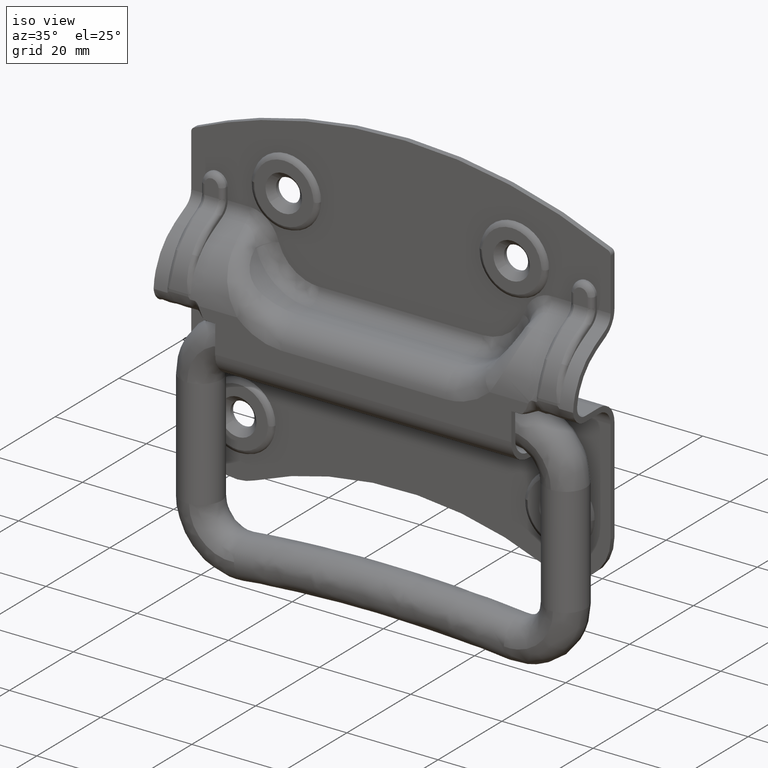
[diagram: clean part render]
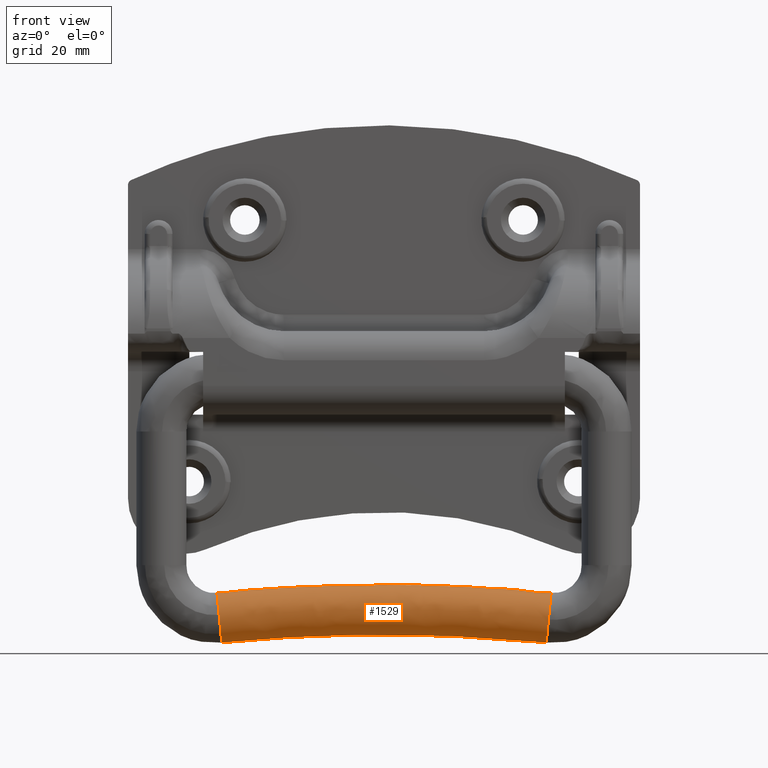
[diagram: tour spotlight — one face highlighted and labeled with its STEP entity id]
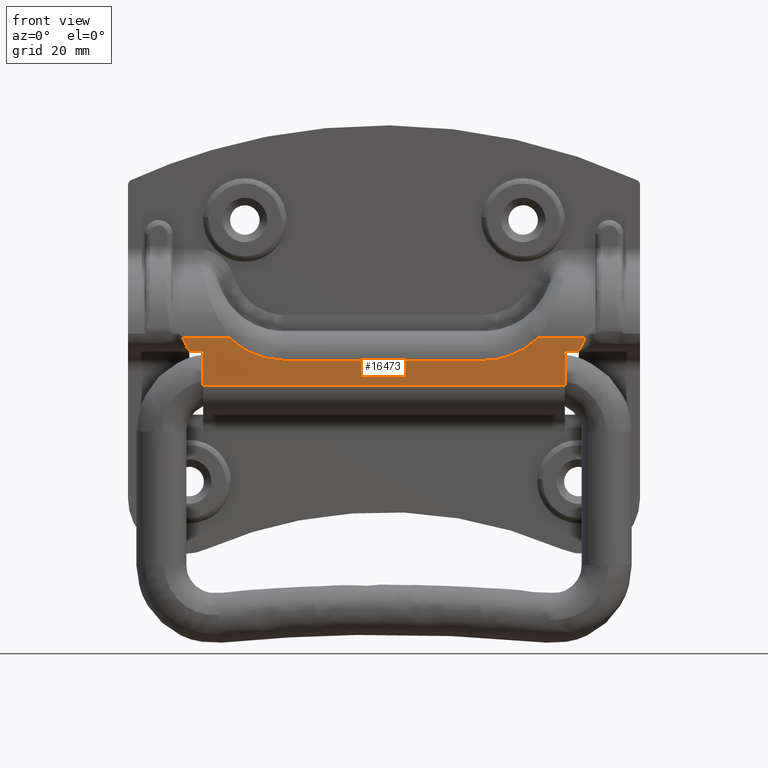
[diagram: tour spotlight — one face highlighted and labeled with its STEP entity id]
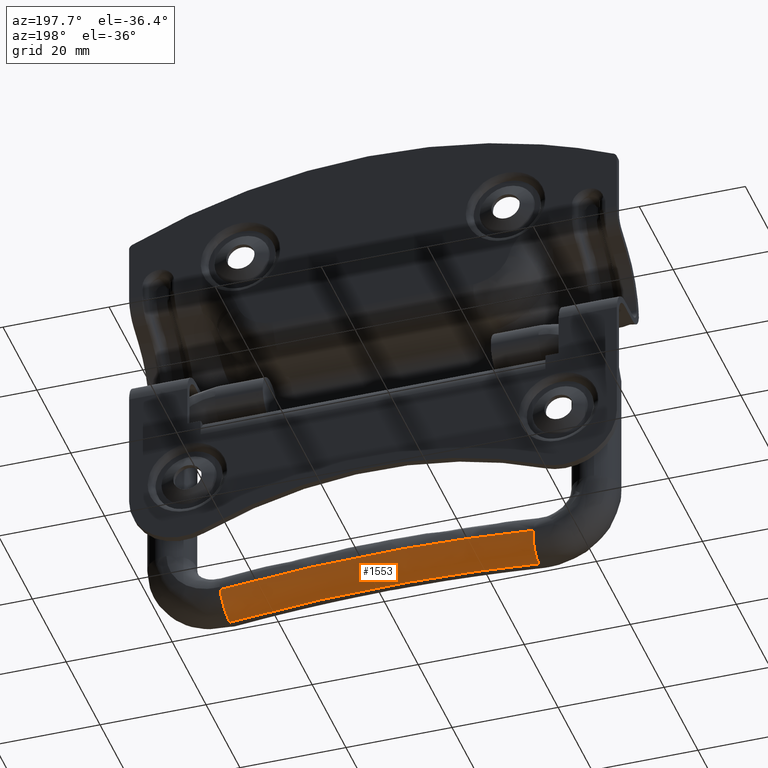
[diagram: tour spotlight — one face highlighted and labeled with its STEP entity id]
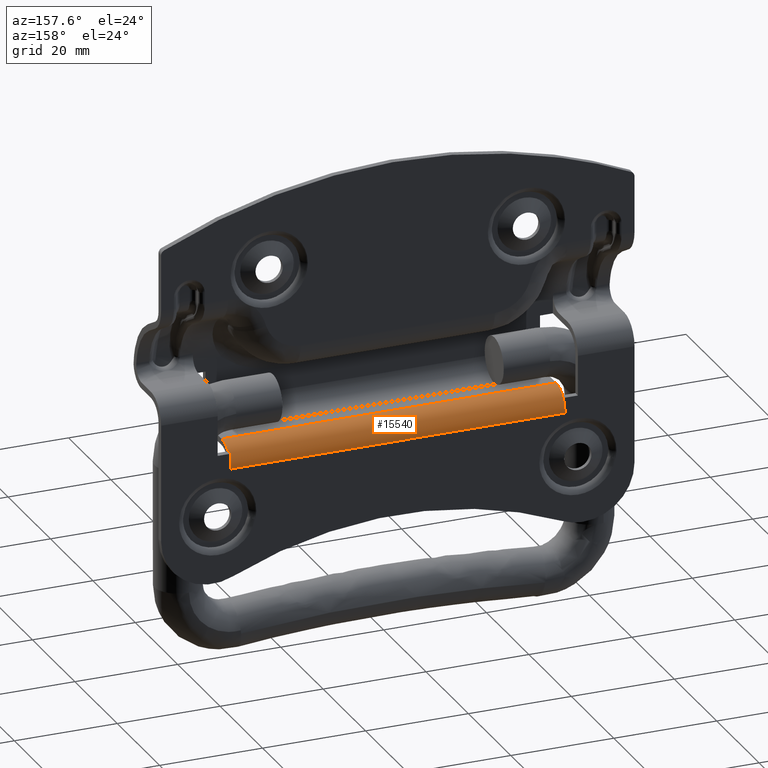
[diagram: tour spotlight — one face highlighted and labeled with its STEP entity id]
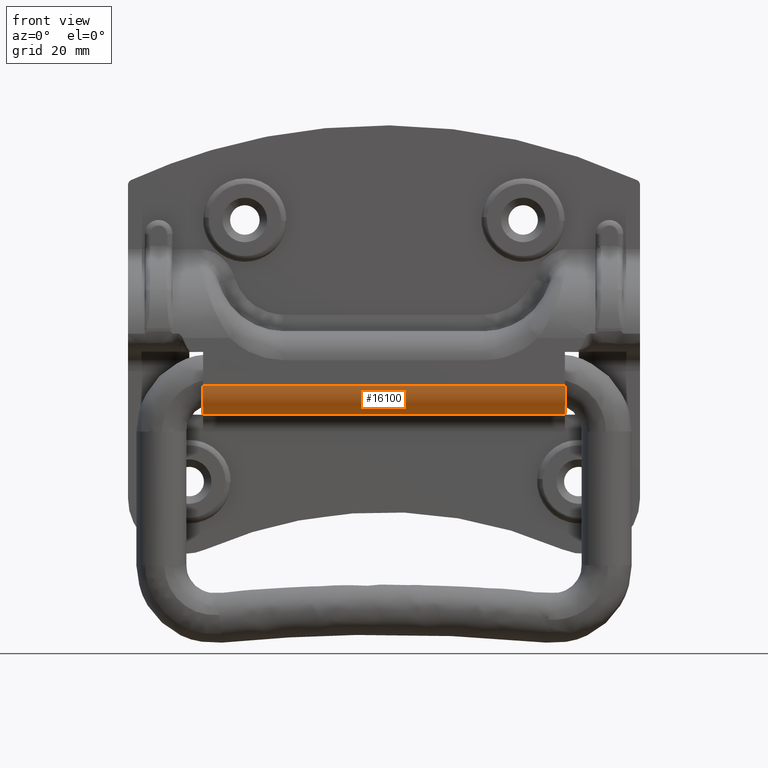
[diagram: tour spotlight — one face highlighted and labeled with its STEP entity id]
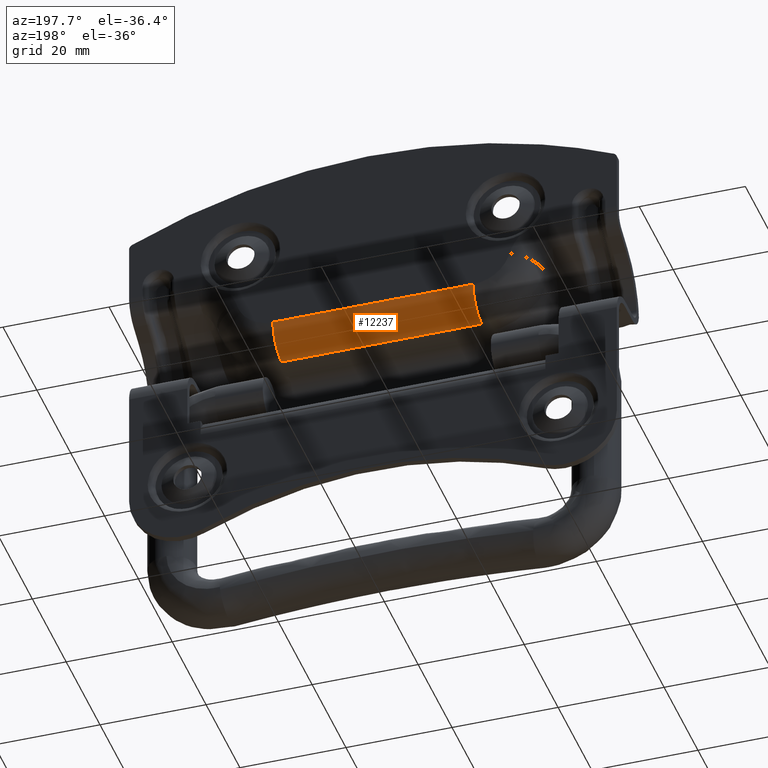
[diagram: tour spotlight — one face highlighted and labeled with its STEP entity id]
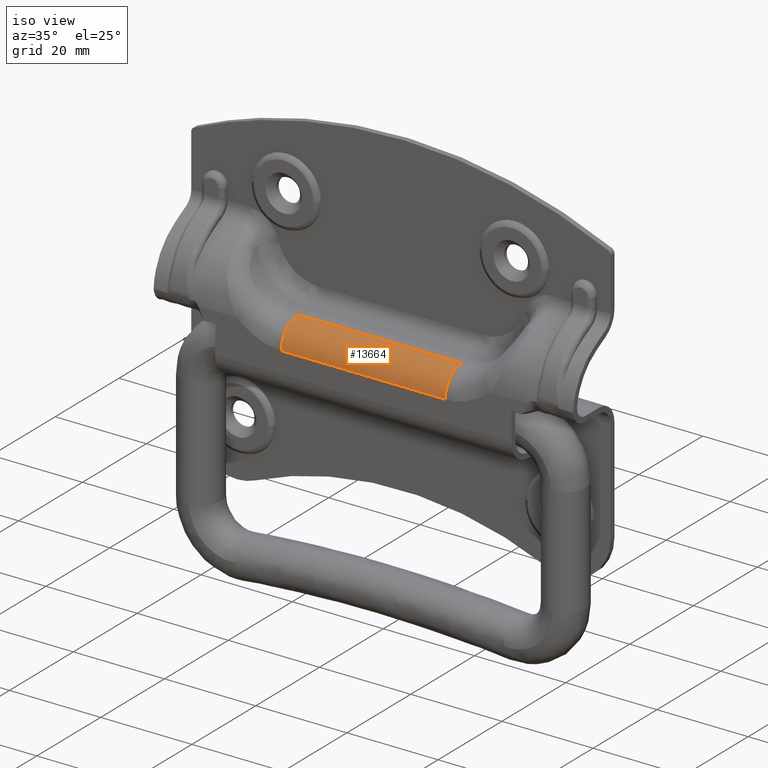
[diagram: tour spotlight — one face highlighted and labeled with its STEP entity id]
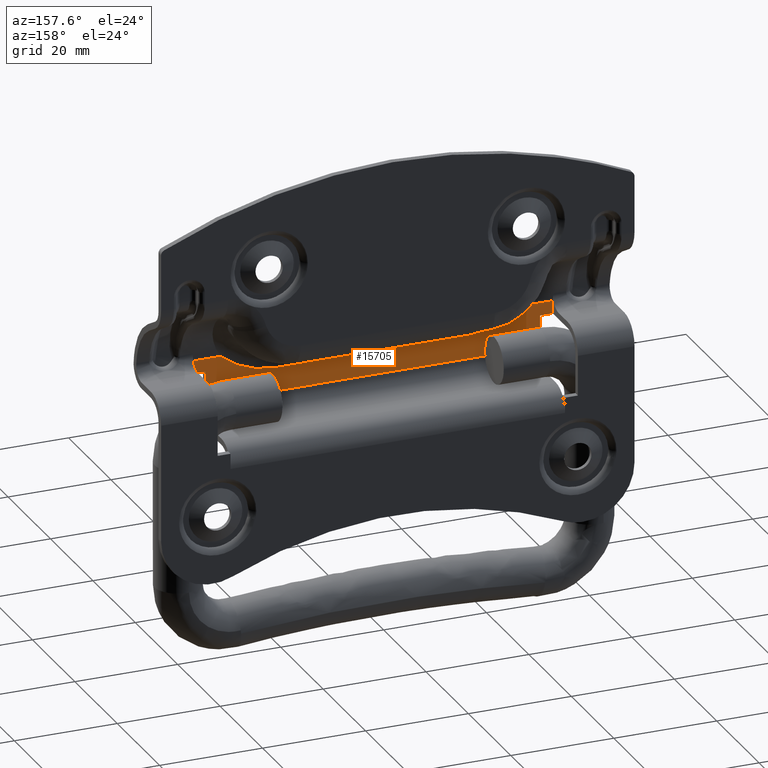
[diagram: tour spotlight — one face highlighted and labeled with its STEP entity id]
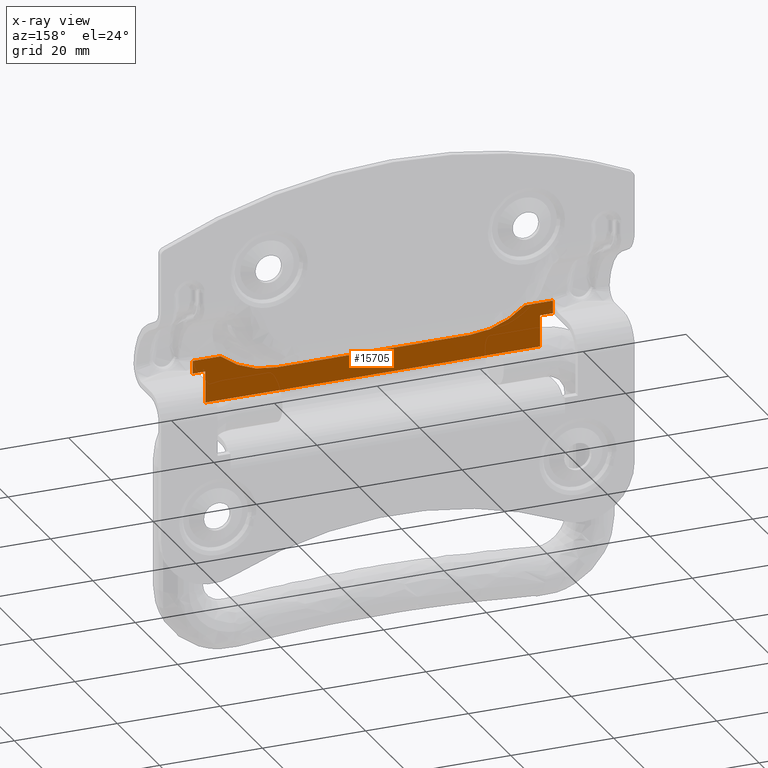
[diagram: x-ray of the same camera — body ghosted, this tour face saturated]
A machine part: a face-by-face anatomy tour. The part has 286 B-rep faces; the first image is the clean iso view, then the 8 largest visible faces are spotlighted one at a time (largest first), each with its STEP entity span.

Face 1 — front view, entity #1529. In plain terms, the highlighted face is a freeform B-spline surface patch.
Definition (entity closure, byte-faithful):
#1049=CARTESIAN_POINT('',(-29.626564545512281,-4.471250896667150,-42.449826334269943));
#1050=VERTEX_POINT('',#1049);
#1065=CARTESIAN_POINT('',(-30.014331210190779,-9.860761E-032,-38.476557051657991));
#1066=VERTEX_POINT('',#1065);
#1067=CARTESIAN_POINT('',(-29.626564545512281,-4.471250896667150,-42.449826334269943));
#1068=CARTESIAN_POINT('',(-29.652942188239582,-4.440431399439891,-42.179546607525509));
#1069=CARTESIAN_POINT('',(-29.708412415974959,-4.322104014127392,-41.611168368600843));
#1070=CARTESIAN_POINT('',(-29.803767739055079,-3.909914930158813,-40.634105647804553));
#1071=CARTESIAN_POINT('',(-29.896714754529260,-3.167656147096095,-39.681719731811782));
#1072=CARTESIAN_POINT('',(-29.962403456896698,-2.209847654670495,-39.008637350021061));
#1073=CARTESIAN_POINT('',(-30.003926233491988,-1.161501865438285,-38.583172225129282));
#1074=CARTESIAN_POINT('',(-30.014349703193030,-0.444162774393291,-38.476367601764359));
#1075=CARTESIAN_POINT('',(-30.014331210190779,-9.860761E-032,-38.476557051657991));
#1076=B_SPLINE_CURVE_WITH_KNOTS('',3,(#1067,#1068,#1069,#1070,#1071,#1072,#1073,#1074,#1075),.UNSPECIFIED.,.F.,.U.,(4,1,1,1,1,1,4),(0.000000087951475,0.819942952189238,1.742444323273630,3.177406440176298,4.407339460937630,5.227337968043115,6.559787215687426),.UNSPECIFIED.);
#1077=EDGE_CURVE('',#1050,#1066,#1076,.T.);
#1079=CARTESIAN_POINT('',(-29.546747967903318,4.489044960894897,-43.267601979746090));
#1080=VERTEX_POINT('',#1079);
#1081=CARTESIAN_POINT('',(-30.014331210190779,-9.860761E-032,-38.476557051657991));
#1082=CARTESIAN_POINT('',(-30.014366819848789,0.519130124083102,-38.476192180859023));
#1083=CARTESIAN_POINT('',(-29.998970974362649,1.422508669713792,-38.633944171868350));
#1084=CARTESIAN_POINT('',(-29.945652715462352,2.491644630984946,-39.180264379211643));
#1085=CARTESIAN_POINT('',(-29.882910565494971,3.260756824430233,-39.823145543882909));
#1086=CARTESIAN_POINT('',(-29.807650855351451,3.871097281730435,-40.594286636973123));
#1087=CARTESIAN_POINT('',(-29.695126986268409,4.411718473937000,-41.747251207785681));
#1088=CARTESIAN_POINT('',(-29.602640095102679,4.529798967486927,-42.694908888287110));
#1089=CARTESIAN_POINT('',(-29.546747967903318,4.489044960894897,-43.267601979746090));
#1090=B_SPLINE_CURVE_WITH_KNOTS('',3,(#1081,#1082,#1083,#1084,#1085,#1086,#1087,#1088,#1089),.UNSPECIFIED.,.F.,.U.,(4,1,1,1,1,1,4),(0.000000222270704,1.557279448077507,2.710850903610824,3.576014307369630,4.556499835220942,5.652378301975578,7.382696705283094),.UNSPECIFIED.);
#1091=EDGE_CURVE('',#1066,#1080,#1090,.T.);
#1093=CARTESIAN_POINT('',(-29.140174215467809,-0.056547551695510,-47.433646655502102));
#1094=VERTEX_POINT('',#1093);
#1107=CARTESIAN_POINT('',(-29.293837907298101,-3.425983479298738,-45.859124913801061));
#1108=VERTEX_POINT('',#1107);
#1109=CARTESIAN_POINT('',(-29.140174215467809,-0.056547551695510,-47.433646655502102));
#1110=CARTESIAN_POINT('',(-29.140560705648060,-0.376320060245849,-47.429686494644614));
#1111=CARTESIAN_POINT('',(-29.148918243265030,-1.094835667623078,-47.344050667381168));
#1112=CARTESIAN_POINT('',(-29.192947836680091,-2.303193632997048,-46.892899533596342));
#1113=CARTESIAN_POINT('',(-29.252414336785399,-3.063473556372733,-46.283573390035762));
#1114=CARTESIAN_POINT('',(-29.293837907298101,-3.425983479298738,-45.859124913801061));
#1115=B_SPLINE_CURVE_WITH_KNOTS('',3,(#1109,#1110,#1111,#1112,#1113,#1114),.UNSPECIFIED.,.F.,.U.,(4,1,1,4),(0.000000060920046,0.959401509241919,2.158634300225264,3.837605854207550),.UNSPECIFIED.);
#1116=EDGE_CURVE('',#1094,#1108,#1115,.T.);
#1162=CARTESIAN_POINT('',(-29.293837907298101,-3.425983479298738,-45.859124913801061));
#1163=CARTESIAN_POINT('',(-29.330707599449909,-3.749636832421842,-45.481337949715758));
#1164=CARTESIAN_POINT('',(-29.402064648083229,-4.188605388656958,-44.750174724541012));
#1165=CARTESIAN_POINT('',(-29.518153366642629,-4.503581387926016,-43.560666406174832));
#1166=CARTESIAN_POINT('',(-29.589534130255050,-4.514670676940535,-42.829260168547641));
#1167=CARTESIAN_POINT('',(-29.626564545512281,-4.471250896667150,-42.449826334269943));
#1168=B_SPLINE_CURVE_WITH_KNOTS('',3,(#1162,#1163,#1164,#1165,#1166,#1167),.UNSPECIFIED.,.F.,.U.,(4,1,1,4),(0.000000056006023,1.496402285048508,2.532343662347186,3.683420083726496),.UNSPECIFIED.);
#1169=EDGE_CURVE('',#1108,#1050,#1168,.T.);
#1204=CARTESIAN_POINT('',(29.140144644401470,-0.028273590942687,-47.433822268772801));
#1205=VERTEX_POINT('',#1204);
#1206=CARTESIAN_POINT('',(29.544303685232371,-4.487213007524980,-43.292646916398454));
#1207=VERTEX_POINT('',#1206);
#1208=CARTESIAN_POINT('',(29.140144644401470,-0.028273590942687,-47.433822268772801));
#1209=CARTESIAN_POINT('',(29.140422053719671,-0.551849047759755,-47.430979811761972));
#1210=CARTESIAN_POINT('',(29.154725221073271,-1.353333354069682,-47.284423819808922));
#1211=CARTESIAN_POINT('',(29.204904837235620,-2.427368366028399,-46.770263371279377));
#1212=CARTESIAN_POINT('',(29.262167258097019,-3.172357793424327,-46.183529677816573));
#1213=CARTESIAN_POINT('',(29.344214071301760,-3.856006395232540,-45.342845183527793));
#1214=CARTESIAN_POINT('',(29.436785917817659,-4.313632214110988,-44.394316990464432));
#1215=CARTESIAN_POINT('',(29.510499764928269,-4.460982086565354,-43.639015411778743));
#1216=CARTESIAN_POINT('',(29.544303685232371,-4.487213007524980,-43.292646916398454));
#1217=B_SPLINE_CURVE_WITH_KNOTS('',3,(#1208,#1209,#1210,#1211,#1212,#1213,#1214,#1215,#1216),.UNSPECIFIED.,.F.,.U.,(4,1,1,1,1,1,4),(0.000000053888620,1.570564563756400,2.408220342151212,3.559948416615830,4.397571761723205,5.654062528371492,6.701089507543456),.UNSPECIFIED.);
#1218=EDGE_CURVE('',#1205,#1207,#1217,.T.);
#1220=CARTESIAN_POINT('',(29.546748761636000,4.489045532132957,-43.267593846781608));
#1221=VERTEX_POINT('',#1220);
#1235=CARTESIAN_POINT('',(29.610155147051199,4.487214798095528,-42.617906987432683));
#1236=VERTEX_POINT('',#1235);
#1237=CARTESIAN_POINT('',(29.610155147051199,4.487214798095528,-42.617906987432683));
#1238=CARTESIAN_POINT('',(29.589061400608440,4.503624061795483,-42.834041698040352));
#1239=CARTESIAN_POINT('',(29.567850906850790,4.504243072345034,-43.051372791441139));
#1240=CARTESIAN_POINT('',(29.546748761636000,4.489045532132957,-43.267593846781608));
#1241=B_SPLINE_CURVE_WITH_KNOTS('',3,(#1237,#1238,#1239,#1240),.UNSPECIFIED.,.F.,.U.,(4,4),(2.310291E-009,0.653358843948670),.UNSPECIFIED.);
#1242=EDGE_CURVE('',#1236,#1221,#1241,.T.);
#1308=CARTESIAN_POINT('',(30.014331210191429,-9.860761E-032,-38.476557051657991));
#1309=VERTEX_POINT('',#1308);
#1310=CARTESIAN_POINT('',(29.544303685232371,-4.487213007524980,-43.292646916398454));
#1311=CARTESIAN_POINT('',(29.587280580523512,-4.520831471569328,-42.852288464378532));
#1312=CARTESIAN_POINT('',(29.651514734801811,-4.472498749085325,-42.194119639417977));
#1313=CARTESIAN_POINT('',(29.739690848933790,-4.200433106055921,-41.290631925431370));
#1314=CARTESIAN_POINT('',(29.802157329386080,-3.883147704343784,-40.650575397689849));
#1315=CARTESIAN_POINT('',(29.870690746685661,-3.373617614249030,-39.948354612606707));
#1316=CARTESIAN_POINT('',(29.928743211817292,-2.735098539122286,-39.353525855912913));
#1317=CARTESIAN_POINT('',(29.975669023841551,-1.917462055261849,-38.872705238404720));
#1318=CARTESIAN_POINT('',(30.006504071615389,-1.022407360107788,-38.556757025829178));
#1319=CARTESIAN_POINT('',(30.014339750104789,-0.366535663207709,-38.476469542202317));
#1320=CARTESIAN_POINT('',(30.014331210191429,-9.860761E-032,-38.476557051657991));
#1321=B_SPLINE_CURVE_WITH_KNOTS('',3,(#1310,#1311,#1312,#1313,#1314,#1315,#1316,#1317,#1318,#1319,#1320),.UNSPECIFIED.,.F.,.U.,(4,1,1,1,1,1,1,1,4),(0.000000226023258,1.331101281664012,1.967733903434451,2.835862679753609,3.472504798267384,4.572077981251884,5.440203074855903,6.308337975866534,7.407937517439116),.UNSPECIFIED.);
#1322=EDGE_CURVE('',#1207,#1309,#1321,.T.);
#1329=CARTESIAN_POINT('',(30.014331210191429,-9.860761E-032,-38.476557051657991));
#1330=CARTESIAN_POINT('',(30.014343042240160,0.420583135491215,-38.476435815744502));
#1331=CARTESIAN_POINT('',(30.002799293552041,1.261699450588701,-38.594717691510837));
#1332=CARTESIAN_POINT('',(29.957882492154361,2.295591669898915,-39.054953241182979));
#1333=CARTESIAN_POINT('',(29.899606061431928,3.077629116594269,-39.652076907423996));
#1334=CARTESIAN_POINT('',(29.828251311892021,3.734844302719020,-40.383206270030122));
#1335=CARTESIAN_POINT('',(29.731489755347489,4.273722576244163,-41.374663960196898));
#1336=CARTESIAN_POINT('',(29.650893809157122,4.455691772209889,-42.200482327532832));
#1337=CARTESIAN_POINT('',(29.610155147051199,4.487214798095528,-42.617906987432683));
#1338=B_SPLINE_CURVE_WITH_KNOTS('',3,(#1329,#1330,#1331,#1332,#1333,#1334,#1335,#1336,#1337),.UNSPECIFIED.,.F.,.U.,(4,1,1,1,1,1,4),(0.000000054807825,1.261755371633103,2.523558232717827,3.364720600989037,4.205881512292580,5.467685417961368,6.729441150125518),.UNSPECIFIED.);
#1339=EDGE_CURVE('',#1309,#1236,#1338,.T.);
#1452=CARTESIAN_POINT('',(32.471716619124635,4.482075703676673,-43.667614667258604));
#1453=CARTESIAN_POINT('',(-0.000003675048351,4.482075703676672,-40.180198682493057));
#1454=CARTESIAN_POINT('',(-32.471723885408728,4.482075703676676,-43.667615447647115));
#1455=CARTESIAN_POINT('',(32.477062627062672,4.485575312937540,-43.617837389407995));
#1456=CARTESIAN_POINT('',(-0.000003675653395,4.485575312937538,-40.129847251025737));
#1457=CARTESIAN_POINT('',(-32.477069894543057,4.485575312937540,-43.617838169925008));
#1458=CARTESIAN_POINT('',(32.496082840060652,4.498026344496584,-43.440738058813650));
#1459=CARTESIAN_POINT('',(-0.000003677806040,4.498026344496586,-39.950705176722423));
#1460=CARTESIAN_POINT('',(-32.496090111797223,4.498026344496584,-43.440738839787770));
#1461=CARTESIAN_POINT('',(32.509834307044358,4.499644698917170,-43.312696611656229));
#1462=CARTESIAN_POINT('',(-0.000003679362391,4.499644698917169,-39.821186841652512));
#1463=CARTESIAN_POINT('',(-32.509841581858140,4.499644698917170,-43.312697392960835));
#1464=CARTESIAN_POINT('',(32.990326504354329,4.556191878392259,-38.838780020478268));
#1465=CARTESIAN_POINT('',(-0.000003733743005,4.556191878392258,-35.295666074781956));
#1466=CARTESIAN_POINT('',(-32.990333886689150,4.556191878392259,-38.838780813330501));
#1467=CARTESIAN_POINT('',(32.996364865232962,0.056547179475088,-38.782556166959601));
#1468=CARTESIAN_POINT('',(-0.000003734426417,0.056547179475088,-35.238793709929652));
#1469=CARTESIAN_POINT('',(-32.996372248918995,0.056547179475088,-38.782556959956928));
#1470=CARTESIAN_POINT('',(33.002403226111589,-4.443097519442082,-38.726332313440935));
#1471=CARTESIAN_POINT('',(-0.000003735109816,-4.443097519442084,-35.181921345077342));
#1472=CARTESIAN_POINT('',(-33.002410611148846,-4.443097519442083,-38.726333106583390));
#1473=CARTESIAN_POINT('',(32.521911028801625,-4.499644698917170,-43.200248904618917));
#1474=CARTESIAN_POINT('',(-0.000003680729192,-4.499644698917169,-39.707442111947941));
#1475=CARTESIAN_POINT('',(-32.521918306317829,-4.499644698917170,-43.200249686213773));
#1476=CARTESIAN_POINT('',(32.041418831491647,-4.556191878392260,-47.674165495796878));
#1477=CARTESIAN_POINT('',(-0.000003626348576,-4.556191878392261,-44.232962878818498));
#1478=CARTESIAN_POINT('',(-32.041426001486826,-4.556191878392260,-47.674166265844114));
#1479=CARTESIAN_POINT('',(32.035296986574167,0.005663165420846,-47.731166678538820));
#1480=CARTESIAN_POINT('',(-0.000003625655729,0.005663165420846,-44.290621538960607));
#1481=CARTESIAN_POINT('',(-32.035304155199455,0.005663165420846,-47.731167448438931));
#1482=CARTESIAN_POINT('',(32.035214453276154,0.067165040582589,-47.731935155307909));
#1483=CARTESIAN_POINT('',(-0.000003625646388,0.067165040582590,-44.291398879688018));
#1484=CARTESIAN_POINT('',(-32.035221621882954,0.067165040582590,-47.731935925206031));
#1492=(BOUNDED_SURFACE()B_SPLINE_SURFACE(2,2,((#1452,#1455,#1458,#1461,#1464,#1467,#1470,#1473,#1476,#1479,#1482),(#1453,#1456,#1459,#1462,#1465,#1468,#1471,#1474,#1477,#1480,#1483),(#1454,#1457,#1460,#1463,#1466,#1469,#1472,#1475,#1478,#1481,#1484)),.UNSPECIFIED.,.F.,.F.,.U.)B_SPLINE_SURFACE_WITH_KNOTS((3,3),(3,1,2,2,2,1,3),(0.0,66.181945008064957),(0.0,0.113504165874130,0.411737646364877,7.867581769080598,15.323425891796321,22.779270014512040,22.925889081586760),.UNSPECIFIED.)GEOMETRIC_REPRESENTATION_ITEM()RATIONAL_B_SPLINE_SURFACE(((0.933905454547265,0.937857811720540,0.952195032099942,0.963482925953126,0.681285310498912,0.963482925953126,0.681285310498912,0.963482925953126,0.681285310498912,0.969032337988518,0.974581750023910),(0.928565561185816,0.932495319534200,0.946750562420535,0.957973914248444,0.677389850964895,0.957973914248444,0.677389850964895,0.957973914248444,0.677389850964895,0.963491595803686,0.969009277358928),(0.933905455749059,0.937857812927420,0.952195033325272,0.963482927192982,0.681285311375622,0.963482927192982,0.681285311375622,0.963482927192982,0.681285311375622,0.969032339235515,0.974581751278049)))REPRESENTATION_ITEM('')SURFACE());
#1493=ORIENTED_EDGE('',*,*,#1091,.F.);
#1494=ORIENTED_EDGE('',*,*,#1077,.F.);
#1495=ORIENTED_EDGE('',*,*,#1169,.F.);
#1496=ORIENTED_EDGE('',*,*,#1116,.F.);
#1497=CARTESIAN_POINT('',(29.140144644401467,-0.028273590942687,-47.433822268772808));
#1498=CARTESIAN_POINT('',(-0.000014844181163,-0.042410571319099,-44.589791779036027));
#1499=CARTESIAN_POINT('',(-29.140174215467813,-0.056547551695510,-47.433646655502102));
#1507=(BOUNDED_CURVE()B_SPLINE_CURVE(2,(#1497,#1498,#1499),.UNSPECIFIED.,.F.,.U.)B_SPLINE_CURVE_WITH_KNOTS((3,3),(-1.240784963024759,-0.759214934735094),.UNSPECIFIED.)CURVE()GEOMETRIC_REPRESENTATION_ITEM()RATIONAL_B_SPLINE_CURVE((0.963005284427132,0.958451555427583,0.963005286360699))REPRESENTATION_ITEM(''));
#1508=EDGE_CURVE('',#1205,#1094,#1507,.T.);
#1509=ORIENTED_EDGE('',*,*,#1508,.F.);
#1510=ORIENTED_EDGE('',*,*,#1218,.T.);
#1511=ORIENTED_EDGE('',*,*,#1322,.T.);
#1512=ORIENTED_EDGE('',*,*,#1339,.T.);
#1513=ORIENTED_EDGE('',*,*,#1242,.T.);
#1514=CARTESIAN_POINT('',(29.546748761636007,4.489045532132957,-43.267593846781608));
#1515=CARTESIAN_POINT('',(0.000000396866269,4.489045246513927,-40.383975490092745));
#1516=CARTESIAN_POINT('',(-29.546747967903322,4.489044960894897,-43.267601979746097));
#1524=(BOUNDED_CURVE()B_SPLINE_CURVE(2,(#1514,#1515,#1516),.UNSPECIFIED.,.F.,.U.)B_SPLINE_CURVE_WITH_KNOTS((3,3),(-1.240784963024621,-0.759215036975261),.UNSPECIFIED.)CURVE()GEOMETRIC_REPRESENTATION_ITEM()RATIONAL_B_SPLINE_CURVE((0.941343251723880,0.936891956156612,0.941343251723882))REPRESENTATION_ITEM(''));
#1525=EDGE_CURVE('',#1221,#1080,#1524,.T.);
#1526=ORIENTED_EDGE('',*,*,#1525,.T.);
#1527=EDGE_LOOP('',(#1493,#1494,#1495,#1496,#1509,#1510,#1511,#1512,#1513,#1526));
#1528=FACE_OUTER_BOUND('',#1527,.T.);
#1529=ADVANCED_FACE('',(#1528),#1492,.T.);

Face 2 — front view, entity #16473. In plain terms, the highlighted face is a freeform B-spline surface patch.
Definition (entity closure, byte-faithful):
#11255=CARTESIAN_POINT('',(36.125291755031753,-6.300000000000100,7.300026960092620));
#11256=VERTEX_POINT('',#11255);
#11282=CARTESIAN_POINT('',(34.312645877515862,-6.300000000000101,4.880562039000712));
#11283=VERTEX_POINT('',#11282);
#11284=CARTESIAN_POINT('',(34.312645877515870,-6.300000000000099,4.880562039000711));
#11285=CARTESIAN_POINT('',(34.458430585010582,-6.300000000000099,4.887041359333807));
#11286=CARTESIAN_POINT('',(34.604215292505302,-6.300000000000099,4.893520679666904));
#11287=CARTESIAN_POINT('',(34.750000000000000,-6.300000000000100,4.900000000000000));
#11288=CARTESIAN_POINT('',(35.208430585010582,-6.300000000000100,4.920374692667147));
#11289=CARTESIAN_POINT('',(35.666861170021143,-6.300000000000100,6.260856747405535));
#11290=CARTESIAN_POINT('',(36.125291755031711,-6.300000000000100,7.300026960092638));
#11291=B_SPLINE_CURVE_WITH_KNOTS('',3,(#11284,#11285,#11286,#11287,#11288,#11289,#11290),.UNSPECIFIED.,.F.,.U.,(4,3,4),(0.044756688333725,0.055555555555556,0.089513376667450),.UNSPECIFIED.);
#11292=EDGE_CURVE('',#11283,#11256,#11291,.T.);
#11294=CARTESIAN_POINT('',(32.500000000000000,-6.300000000000080,4.800000000000000));
#11295=VERTEX_POINT('',#11294);
#11296=CARTESIAN_POINT('',(32.500000000000000,-6.300000000000080,4.800000000000000));
#11297=CARTESIAN_POINT('',(34.312645877515862,-6.300000000000101,4.880562039000712));
#11298=QUASI_UNIFORM_CURVE('',1,(#11296,#11297),.UNSPECIFIED.,.F.,.U.);
#11299=EDGE_CURVE('',#11295,#11283,#11298,.T.);
#11377=CARTESIAN_POINT('',(-36.125791755031699,-6.300000000000100,7.300026960092620));
#11378=VERTEX_POINT('',#11377);
#11439=CARTESIAN_POINT('',(-32.500500000000002,-6.300000000000080,4.800000000000000));
#11440=VERTEX_POINT('',#11439);
#11454=CARTESIAN_POINT('',(-34.313145877515851,-6.300000000000079,4.880562039000711));
#11455=VERTEX_POINT('',#11454);
#11456=CARTESIAN_POINT('',(-34.313145877515851,-6.300000000000079,4.880562039000711));
#11457=CARTESIAN_POINT('',(-32.500500000000002,-6.300000000000080,4.800000000000000));
#11458=QUASI_UNIFORM_CURVE('',1,(#11456,#11457),.UNSPECIFIED.,.F.,.U.);
#11459=EDGE_CURVE('',#11455,#11440,#11458,.T.);
#11461=CARTESIAN_POINT('',(-36.125791755031713,-6.300000000000080,7.300026960092621));
#11462=CARTESIAN_POINT('',(-35.667361170021138,-6.300000000000080,6.260856747405522));
#11463=CARTESIAN_POINT('',(-35.208930585010570,-6.300000000000080,4.920374692667147));
#11464=CARTESIAN_POINT('',(-34.750500000000002,-6.300000000000080,4.900000000000000));
#11465=CARTESIAN_POINT('',(-34.604715292505283,-6.300000000000080,4.893520679666904));
#11466=CARTESIAN_POINT('',(-34.458930585010563,-6.300000000000080,4.887041359333807));
#11467=CARTESIAN_POINT('',(-34.313145877515844,-6.300000000000080,4.880562039000711));
#11468=B_SPLINE_CURVE_WITH_KNOTS('',3,(#11461,#11462,#11463,#11464,#11465,#11466,#11467),.UNSPECIFIED.,.F.,.U.,(4,3,4),(0.910486623332550,0.944444444444444,0.955243311666275),.UNSPECIFIED.);
#11469=EDGE_CURVE('',#11378,#11455,#11468,.T.);
#13430=CARTESIAN_POINT('',(-27.725849927607999,-6.299715658165910,7.300026839039960));
#13431=VERTEX_POINT('',#13430);
#13571=CARTESIAN_POINT('',(-17.989417224256801,-6.300000000000100,3.300000000000000));
#13572=VERTEX_POINT('',#13571);
#13610=CARTESIAN_POINT('',(-17.989417224256801,-6.300000000000100,3.300000000000000));
#13611=CARTESIAN_POINT('',(-20.804692101036380,-6.299929651165541,3.300318261229154));
#13612=CARTESIAN_POINT('',(-23.446207221868761,-6.299851939476164,4.440983718433849));
#13613=CARTESIAN_POINT('',(-25.802177299860720,-6.299782628339749,5.458344423651684));
#13614=CARTESIAN_POINT('',(-27.725849927607999,-6.299715658165910,7.300026839039960));
#13615=B_SPLINE_CURVE_WITH_KNOTS('',2,(#13610,#13611,#13612,#13613,#13614),.UNSPECIFIED.,.F.,.U.,(3,2,3),(0.0,0.500000000000000,1.0),.UNSPECIFIED.);
#13616=EDGE_CURVE('',#13572,#13431,#13615,.T.);
#13635=CARTESIAN_POINT('',(17.989344396501650,-6.300000000000100,3.300000000000000));
#13636=VERTEX_POINT('',#13635);
#13657=CARTESIAN_POINT('',(17.989344396501650,-6.300000000000100,3.300000000000000));
#13658=CARTESIAN_POINT('',(-17.989417224256801,-6.300000000000100,3.300000000000000));
#13659=QUASI_UNIFORM_CURVE('',1,(#13657,#13658),.UNSPECIFIED.,.F.,.U.);
#13660=EDGE_CURVE('',#13636,#13572,#13659,.T.);
#13703=CARTESIAN_POINT('',(27.730217457011701,-6.300000000000100,7.300074853601011));
#13704=VERTEX_POINT('',#13703);
#13739=CARTESIAN_POINT('',(27.730217457011701,-6.300000000000100,7.300074853601011));
#13740=CARTESIAN_POINT('',(25.823797452408080,-6.300000000000100,5.469495839109103));
#13741=CARTESIAN_POINT('',(23.453992622412621,-6.300000000000100,4.442595586875654));
#13742=CARTESIAN_POINT('',(20.817639825808762,-6.300000000000100,3.300192922512078));
#13743=CARTESIAN_POINT('',(17.989344396501650,-6.300000000000100,3.300000000000000));
#13744=B_SPLINE_CURVE_WITH_KNOTS('',2,(#13739,#13740,#13741,#13742,#13743),.UNSPECIFIED.,.F.,.U.,(3,2,3),(0.000003963101949,0.500000000000000,1.0),.UNSPECIFIED.);
#13745=EDGE_CURVE('',#13704,#13636,#13744,.T.);
#15891=CARTESIAN_POINT('',(32.500000000000000,-6.300000000000100,-1.300000000000096));
#15892=VERTEX_POINT('',#15891);
#15893=CARTESIAN_POINT('',(32.500000000000000,-6.300000000000100,-1.300000000000096));
#15894=CARTESIAN_POINT('',(32.500000000000000,-6.300000000000080,4.800000000000000));
#15895=QUASI_UNIFORM_CURVE('',1,(#15893,#15894),.UNSPECIFIED.,.F.,.U.);
#15896=EDGE_CURVE('',#15892,#11295,#15895,.T.);
#16022=CARTESIAN_POINT('',(-32.500500000000002,-6.300000000000080,-1.300000000000096));
#16023=VERTEX_POINT('',#16022);
#16037=CARTESIAN_POINT('',(-32.500500000000002,-6.300000000000080,-1.300000000000096));
#16038=CARTESIAN_POINT('',(-32.500500000000002,-6.300000000000080,4.800000000000000));
#16039=QUASI_UNIFORM_CURVE('',1,(#16037,#16038),.UNSPECIFIED.,.F.,.U.);
#16040=EDGE_CURVE('',#16023,#11440,#16039,.T.);
#16092=CARTESIAN_POINT('',(32.500000000000000,-6.300000000000100,-1.300000000000096));
#16093=CARTESIAN_POINT('',(-32.500500000000002,-6.300000000000080,-1.300000000000096));
#16094=QUASI_UNIFORM_CURVE('',1,(#16092,#16093),.UNSPECIFIED.,.F.,.U.);
#16095=EDGE_CURVE('',#15892,#16023,#16094,.T.);
#16241=CARTESIAN_POINT('',(36.125291755031753,-6.300000000000100,7.300026960092620));
#16242=CARTESIAN_POINT('',(27.730217457011701,-6.300000000000100,7.300074853601011));
#16243=QUASI_UNIFORM_CURVE('',1,(#16241,#16242),.UNSPECIFIED.,.F.,.U.);
#16244=EDGE_CURVE('',#11256,#13704,#16243,.T.);
#16444=CARTESIAN_POINT('',(-27.725849927607999,-6.299715658165910,7.300026839039960));
#16445=CARTESIAN_POINT('',(-36.125791755031699,-6.300000000000100,7.300026960092620));
#16446=QUASI_UNIFORM_CURVE('',1,(#16444,#16445),.UNSPECIFIED.,.F.,.U.);
#16447=EDGE_CURVE('',#13431,#11378,#16446,.T.);
#16454=CARTESIAN_POINT('',(-39.734735012915557,-6.300000000000100,-1.729573722268857));
#16455=CARTESIAN_POINT('',(-39.734735012915557,-6.300000000000100,7.729648806541755));
#16456=CARTESIAN_POINT('',(39.734229845115408,-6.300000000000100,-1.729573722268857));
#16457=CARTESIAN_POINT('',(39.734229845115408,-6.300000000000100,7.729648806541755));
#16458=B_SPLINE_SURFACE_WITH_KNOTS('',1,1,((#16454,#16456),(#16455,#16457)),.UNSPECIFIED.,.F.,.F.,.U.,(2,2),(2,2),(0.0,9.459222528810614),(0.0,79.468964858030972),.UNSPECIFIED.);
#16459=ORIENTED_EDGE('',*,*,#16447,.T.);
#16460=ORIENTED_EDGE('',*,*,#11469,.T.);
#16461=ORIENTED_EDGE('',*,*,#11459,.T.);
#16462=ORIENTED_EDGE('',*,*,#16040,.F.);
#16463=ORIENTED_EDGE('',*,*,#16095,.F.);
#16464=ORIENTED_EDGE('',*,*,#15896,.T.);
#16465=ORIENTED_EDGE('',*,*,#11299,.T.);
#16466=ORIENTED_EDGE('',*,*,#11292,.T.);
#16467=ORIENTED_EDGE('',*,*,#16244,.T.);
#16468=ORIENTED_EDGE('',*,*,#13745,.T.);
#16469=ORIENTED_EDGE('',*,*,#13660,.T.);
#16470=ORIENTED_EDGE('',*,*,#13616,.T.);
#16471=EDGE_LOOP('',(#16459,#16460,#16461,#16462,#16463,#16464,#16465,#16466,#16467,#16468,#16469,#16470));
#16472=FACE_OUTER_BOUND('',#16471,.T.);
#16473=ADVANCED_FACE('',(#16472),#16458,.F.);

Face 3 — auxiliary view, entity #1553. In plain terms, the highlighted face is a freeform B-spline surface patch.
Definition (entity closure, byte-faithful):
#1079=CARTESIAN_POINT('',(-29.546747967903318,4.489044960894897,-43.267601979746090));
#1080=VERTEX_POINT('',#1079);
#1093=CARTESIAN_POINT('',(-29.140174215467809,-0.056547551695510,-47.433646655502102));
#1094=VERTEX_POINT('',#1093);
#1095=CARTESIAN_POINT('',(-29.546747967903318,4.489044960894897,-43.267601979746090));
#1096=CARTESIAN_POINT('',(-29.491741490817411,4.449937523872601,-43.831220330133192));
#1097=CARTESIAN_POINT('',(-29.396821871377711,4.190245118146512,-44.803810447821490));
#1098=CARTESIAN_POINT('',(-29.292720260920479,3.472312266466491,-45.870496446121997));
#1099=CARTESIAN_POINT('',(-29.231771998537951,2.790679832684526,-46.495015823248750));
#1100=CARTESIAN_POINT('',(-29.190208874873850,2.135679694712459,-46.920906935890017));
#1101=CARTESIAN_POINT('',(-29.151292374074231,1.221898475289564,-47.319687500685177));
#1102=CARTESIAN_POINT('',(-29.139535466134390,0.440095610277856,-47.440176646432263));
#1103=CARTESIAN_POINT('',(-29.140174215467809,-0.056547551695510,-47.433646655502102));
#1104=B_SPLINE_CURVE_WITH_KNOTS('',3,(#1095,#1096,#1097,#1098,#1099,#1100,#1101,#1102,#1103),.UNSPECIFIED.,.F.,.U.,(4,1,1,1,1,1,4),(0.000000057518765,1.702810236632901,2.979929713116655,3.831311118378232,4.469857685769702,5.321290102766732,6.811240773976907),.UNSPECIFIED.);
#1105=EDGE_CURVE('',#1080,#1094,#1104,.T.);
#1204=CARTESIAN_POINT('',(29.140144644401470,-0.028273590942687,-47.433822268772801));
#1205=VERTEX_POINT('',#1204);
#1220=CARTESIAN_POINT('',(29.546748761636000,4.489045532132957,-43.267593846781608));
#1221=VERTEX_POINT('',#1220);
#1222=CARTESIAN_POINT('',(29.546748761636000,4.489045532132957,-43.267593846781608));
#1223=CARTESIAN_POINT('',(29.519415514294110,4.467820830052046,-43.547661232017298));
#1224=CARTESIAN_POINT('',(29.458348796923250,4.360652000349358,-44.173375244152943));
#1225=CARTESIAN_POINT('',(29.362198679631948,3.966273350036306,-45.158567804815902));
#1226=CARTESIAN_POINT('',(29.278715416992370,3.331094679154032,-46.013970706126521));
#1227=CARTESIAN_POINT('',(29.216601464821711,2.572614391223008,-46.650415104913527));
#1228=CARTESIAN_POINT('',(29.176021695845311,1.831993463378731,-47.066211649268318));
#1229=CARTESIAN_POINT('',(29.147320644189421,0.959465264887338,-47.360294104620444));
#1230=CARTESIAN_POINT('',(29.140110775876209,0.324488729567835,-47.434169299227520));
#1231=CARTESIAN_POINT('',(29.140144644401470,-0.028273590942687,-47.433822268772801));
#1232=B_SPLINE_CURVE_WITH_KNOTS('',3,(#1222,#1223,#1224,#1225,#1226,#1227,#1228,#1229,#1230,#1231),.UNSPECIFIED.,.F.,.U.,(4,1,1,1,1,1,1,4),(0.000000055249202,0.846617713469989,1.904945378814890,3.174900580532936,4.021517546459563,4.868165202319467,5.714830607378094,6.773110517366634),.UNSPECIFIED.);
#1233=EDGE_CURVE('',#1221,#1205,#1232,.T.);
#1497=CARTESIAN_POINT('',(29.140144644401467,-0.028273590942687,-47.433822268772808));
#1498=CARTESIAN_POINT('',(-0.000014844181163,-0.042410571319099,-44.589791779036027));
#1499=CARTESIAN_POINT('',(-29.140174215467813,-0.056547551695510,-47.433646655502102));
#1507=(BOUNDED_CURVE()B_SPLINE_CURVE(2,(#1497,#1498,#1499),.UNSPECIFIED.,.F.,.U.)B_SPLINE_CURVE_WITH_KNOTS((3,3),(-1.240784963024759,-0.759214934735094),.UNSPECIFIED.)CURVE()GEOMETRIC_REPRESENTATION_ITEM()RATIONAL_B_SPLINE_CURVE((0.963005284427132,0.958451555427583,0.963005286360699))REPRESENTATION_ITEM(''));
#1508=EDGE_CURVE('',#1205,#1094,#1507,.T.);
#1514=CARTESIAN_POINT('',(29.546748761636007,4.489045532132957,-43.267593846781608));
#1515=CARTESIAN_POINT('',(0.000000396866269,4.489045246513927,-40.383975490092745));
#1516=CARTESIAN_POINT('',(-29.546747967903322,4.489044960894897,-43.267601979746097));
#1524=(BOUNDED_CURVE()B_SPLINE_CURVE(2,(#1514,#1515,#1516),.UNSPECIFIED.,.F.,.U.)B_SPLINE_CURVE_WITH_KNOTS((3,3),(-1.240784963024621,-0.759215036975261),.UNSPECIFIED.)CURVE()GEOMETRIC_REPRESENTATION_ITEM()RATIONAL_B_SPLINE_CURVE((0.941343251723880,0.936891956156612,0.941343251723882))REPRESENTATION_ITEM(''));
#1525=EDGE_CURVE('',#1221,#1080,#1524,.T.);
#1530=CARTESIAN_POINT('',(32.035380470613021,-0.056547179475088,-47.730389349315558));
#1531=CARTESIAN_POINT('',(-0.000003625665177,-0.056547179475088,-44.289835243670815));
#1532=CARTESIAN_POINT('',(-32.035387639256982,-0.056547179475088,-47.730390119217674));
#1533=CARTESIAN_POINT('',(32.029678123745931,4.192707770278635,-47.783484538790404));
#1534=CARTESIAN_POINT('',(-0.000003625019794,4.192707770278634,-44.343542857054388));
#1535=CARTESIAN_POINT('',(-32.029685291113836,4.192707770278634,-47.783485308555470));
#1536=CARTESIAN_POINT('',(32.482363738923773,4.489045532281945,-43.568478143951396));
#1537=CARTESIAN_POINT('',(-0.000003676253357,4.489045532281946,-40.079918673726951));
#1538=CARTESIAN_POINT('',(-32.482371007590380,4.489045532281946,-43.568478924595780));
#1546=(BOUNDED_SURFACE()B_SPLINE_SURFACE(2,2,((#1530,#1533,#1536),(#1531,#1534,#1537),(#1532,#1535,#1538)),.UNSPECIFIED.,.F.,.F.,.U.)B_SPLINE_SURFACE_WITH_KNOTS((3,3),(3,3),(0.0,65.150995253011146),(0.0,7.155646014189560),.UNSPECIFIED.)GEOMETRIC_REPRESENTATION_ITEM()RATIONAL_B_SPLINE_SURFACE(((0.963482925953126,0.692573215117080,0.941810149086242),(0.957973914248444,0.688613213496238,0.936425058188268),(0.963482927192982,0.692573216008317,0.941810150298209)))REPRESENTATION_ITEM('')SURFACE());
#1547=ORIENTED_EDGE('',*,*,#1105,.F.);
#1548=ORIENTED_EDGE('',*,*,#1525,.F.);
#1549=ORIENTED_EDGE('',*,*,#1233,.T.);
#1550=ORIENTED_EDGE('',*,*,#1508,.T.);
#1551=EDGE_LOOP('',(#1547,#1548,#1549,#1550));
#1552=FACE_OUTER_BOUND('',#1551,.T.);
#1553=ADVANCED_FACE('',(#1552),#1546,.T.);

Face 4 — auxiliary view, entity #15540. In plain terms, the highlighted face is a freeform B-spline surface patch.
Definition (entity closure, byte-faithful):
#15466=CARTESIAN_POINT('',(34.125012499999997,6.699840076869208,-9.536651449093167));
#15467=CARTESIAN_POINT('',(-34.166137812500011,6.699840076869208,-9.536651449093167));
#15468=CARTESIAN_POINT('',(34.125012499999997,6.739143944053786,-5.032874363550642));
#15469=CARTESIAN_POINT('',(-34.166137812500011,6.739143944053786,-5.032874363550642));
#15470=CARTESIAN_POINT('',(34.125012499999997,2.243596133953292,-5.307833846628158));
#15471=CARTESIAN_POINT('',(-34.166137812500011,2.243596133953292,-5.307833846628158));
#15479=(BOUNDED_SURFACE()B_SPLINE_SURFACE(1,2,((#15466,#15468,#15470),(#15467,#15469,#15471)),.UNSPECIFIED.,.F.,.F.,.U.)B_SPLINE_SURFACE_WITH_KNOTS((2,2),(3,3),(0.0,68.291150312500022),(0.0,7.304847899343678),.UNSPECIFIED.)GEOMETRIC_REPRESENTATION_ITEM()RATIONAL_B_SPLINE_SURFACE(((1.0,0.681998360062499,1.0),(1.0,0.681998360062499,1.0)))REPRESENTATION_ITEM('')SURFACE());
#15480=CARTESIAN_POINT('',(32.500000000000000,2.499999999999690,-5.300000000000090));
#15481=VERTEX_POINT('',#15480);
#15482=CARTESIAN_POINT('',(32.500000000000000,5.499999999999799,-6.560612308660391));
#15483=VERTEX_POINT('',#15482);
#15484=CARTESIAN_POINT('',(32.500000000000000,2.499999999999690,-5.300000000000090));
#15485=CARTESIAN_POINT('',(32.499999999999879,3.022204601862858,-5.299491908196250));
#15486=CARTESIAN_POINT('',(32.500000000000313,3.822388972636384,-5.451302655382681));
#15487=CARTESIAN_POINT('',(32.499999999999652,4.819133859136851,-5.960771385173357));
#15488=CARTESIAN_POINT('',(32.500000000000327,5.280795813270759,-6.336802451185082));
#15489=CARTESIAN_POINT('',(32.500000000000000,5.499999999999799,-6.560612308660391));
#15490=B_SPLINE_CURVE_WITH_KNOTS('',3,(#15484,#15485,#15486,#15487,#15488,#15489),.UNSPECIFIED.,.F.,.U.,(4,1,1,4),(0.000000026927769,1.566384269008186,2.401788215079713,3.341618448823380),.UNSPECIFIED.);
#15491=EDGE_CURVE('',#15481,#15483,#15490,.T.);
#15492=ORIENTED_EDGE('',*,*,#15491,.T.);
#15493=CARTESIAN_POINT('',(32.500000000000000,6.699999999999799,-9.500000000000000));
#15494=VERTEX_POINT('',#15493);
#15495=CARTESIAN_POINT('',(32.500000000000000,5.499999999999799,-6.560612308660391));
#15496=CARTESIAN_POINT('',(32.499999999999950,5.713649324901706,-6.778607172888077));
#15497=CARTESIAN_POINT('',(32.500000000000092,6.114203877638770,-7.288257271140736));
#15498=CARTESIAN_POINT('',(32.499999999999893,6.576065123051328,-8.279167086325943));
#15499=CARTESIAN_POINT('',(32.500000000000043,6.700192105472561,-9.059094845617219));
#15500=CARTESIAN_POINT('',(32.500000000000000,6.699999999999799,-9.500000000000000));
#15501=B_SPLINE_CURVE_WITH_KNOTS('',3,(#15495,#15496,#15497,#15498,#15499,#15500),.UNSPECIFIED.,.F.,.U.,(4,1,1,4),(0.000000023558635,0.915719620495152,1.933185034126105,3.255891759623314),.UNSPECIFIED.);
#15502=EDGE_CURVE('',#15483,#15494,#15501,.T.);
#15503=ORIENTED_EDGE('',*,*,#15502,.T.);
#15504=CARTESIAN_POINT('',(-32.500500000000002,6.699999999999799,-9.500000000000000));
#15505=VERTEX_POINT('',#15504);
#15506=CARTESIAN_POINT('',(32.500000000000000,6.699999999999799,-9.500000000000000));
#15507=CARTESIAN_POINT('',(-32.500500000000002,6.699999999999799,-9.500000000000000));
#15508=QUASI_UNIFORM_CURVE('',1,(#15506,#15507),.UNSPECIFIED.,.F.,.U.);
#15509=EDGE_CURVE('',#15494,#15505,#15508,.T.);
#15510=ORIENTED_EDGE('',*,*,#15509,.T.);
#15511=CARTESIAN_POINT('',(-32.500500000000002,5.499999999999840,-6.560612308660430));
#15512=VERTEX_POINT('',#15511);
#15513=CARTESIAN_POINT('',(-32.500500000000002,5.499999999999840,-6.560612308660430));
#15514=CARTESIAN_POINT('',(-32.500500000000038,5.761182665220924,-6.827014425268668));
#15515=CARTESIAN_POINT('',(-32.500500000000002,6.109286100197723,-7.292998380214463));
#15516=CARTESIAN_POINT('',(-32.500500000000002,6.568958795812330,-8.279327219844577));
#15517=CARTESIAN_POINT('',(-32.500500000000059,6.700464796709479,-8.991192273795768));
#15518=CARTESIAN_POINT('',(-32.500500000000002,6.699999999999799,-9.500000000000000));
#15519=B_SPLINE_CURVE_WITH_KNOTS('',3,(#15513,#15514,#15515,#15516,#15517,#15518),.UNSPECIFIED.,.F.,.U.,(4,1,1,4),(0.000000023559004,1.119213168821001,1.729691975282180,3.255891759623238),.UNSPECIFIED.);
#15520=EDGE_CURVE('',#15512,#15505,#15519,.T.);
#15521=ORIENTED_EDGE('',*,*,#15520,.F.);
#15522=CARTESIAN_POINT('',(-32.500500000000002,2.499999999999690,-5.300000000000090));
#15523=VERTEX_POINT('',#15522);
#15524=CARTESIAN_POINT('',(-32.500500000000002,2.499999999999690,-5.300000000000090));
#15525=CARTESIAN_POINT('',(-32.500500000000017,2.743647292538632,-5.299995019342523));
#15526=CARTESIAN_POINT('',(-32.500499999999967,3.335392288357109,-5.351575362248906));
#15527=CARTESIAN_POINT('',(-32.500500000000017,4.408318918619242,-5.681409723265490));
#15528=CARTESIAN_POINT('',(-32.500500000000002,5.134900087152435,-6.187275776957698));
#15529=CARTESIAN_POINT('',(-32.500500000000002,5.499999999999840,-6.560612308660430));
#15530=B_SPLINE_CURVE_WITH_KNOTS('',3,(#15524,#15525,#15526,#15527,#15528,#15529),.UNSPECIFIED.,.F.,.U.,(4,1,1,4),(0.000000026927667,0.730979004131843,1.775234206742954,3.341618448823447),.UNSPECIFIED.);
#15531=EDGE_CURVE('',#15523,#15512,#15530,.T.);
#15532=ORIENTED_EDGE('',*,*,#15531,.F.);
#15533=CARTESIAN_POINT('',(32.500000000000000,2.499999999999690,-5.300000000000090));
#15534=CARTESIAN_POINT('',(-32.500500000000002,2.499999999999690,-5.300000000000090));
#15535=QUASI_UNIFORM_CURVE('',1,(#15533,#15534),.UNSPECIFIED.,.F.,.U.);
#15536=EDGE_CURVE('',#15481,#15523,#15535,.T.);
#15537=ORIENTED_EDGE('',*,*,#15536,.F.);
#15538=EDGE_LOOP('',(#15492,#15503,#15510,#15521,#15532,#15537));
#15539=FACE_OUTER_BOUND('',#15538,.T.);
#15540=ADVANCED_FACE('',(#15539),#15479,.T.);

Face 5 — front view, entity #16100. In plain terms, the highlighted face is a freeform B-spline surface patch.
Definition (entity closure, byte-faithful):
#15891=CARTESIAN_POINT('',(32.500000000000000,-6.300000000000100,-1.300000000000096));
#15892=VERTEX_POINT('',#15891);
#15898=CARTESIAN_POINT('',(32.500000000000000,-1.100000000000096,-6.500000000000100));
#15899=VERTEX_POINT('',#15898);
#15900=CARTESIAN_POINT('',(32.500000000000000,-1.100000000000096,-6.500000000000100));
#15901=CARTESIAN_POINT('',(32.500000000000007,-1.610540816883085,-6.500218577078654));
#15902=CARTESIAN_POINT('',(32.499999999999993,-2.376150302574085,-6.386284768040738));
#15903=CARTESIAN_POINT('',(32.499999999999993,-3.430839958363054,-5.979384791067878));
#15904=CARTESIAN_POINT('',(32.500000000000057,-4.399646546652590,-5.390856251424531));
#15905=CARTESIAN_POINT('',(32.499999999999851,-5.255548952184711,-4.513629104238054));
#15906=CARTESIAN_POINT('',(32.500000000000277,-5.879705686126407,-3.442461897374998));
#15907=CARTESIAN_POINT('',(32.499999999999709,-6.222044012320798,-2.406078404430171));
#15908=CARTESIAN_POINT('',(32.500000000000213,-6.300052660425981,-1.661604190645325));
#15909=CARTESIAN_POINT('',(32.500000000000000,-6.300000000000100,-1.300000000000096));
#15910=B_SPLINE_CURVE_WITH_KNOTS('',3,(#15900,#15901,#15902,#15903,#15904,#15905,#15906,#15907,#15908,#15909),.UNSPECIFIED.,.F.,.U.,(4,1,1,1,1,1,1,4),(0.000000194732985,1.531531085181410,2.297312191153854,3.382160411762810,4.913654033537801,5.934699046823640,7.083382992029414,8.168192150968746),.UNSPECIFIED.);
#15911=EDGE_CURVE('',#15899,#15892,#15910,.T.);
#16015=CARTESIAN_POINT('',(-32.500500000000002,-1.100000000000096,-6.500000000000100));
#16016=VERTEX_POINT('',#16015);
#16022=CARTESIAN_POINT('',(-32.500500000000002,-6.300000000000080,-1.300000000000096));
#16023=VERTEX_POINT('',#16022);
#16024=CARTESIAN_POINT('',(-32.500500000000002,-1.100000000000096,-6.500000000000100));
#16025=CARTESIAN_POINT('',(-32.500500000000073,-1.695662348478088,-6.500441752051303));
#16026=CARTESIAN_POINT('',(-32.500499999999953,-2.631268434604001,-6.337338146147781));
#16027=CARTESIAN_POINT('',(-32.500500000000031,-3.829234984977432,-5.770673681674531));
#16028=CARTESIAN_POINT('',(-32.500499999999981,-4.663788062499669,-5.135706758220645));
#16029=CARTESIAN_POINT('',(-32.500499999999967,-5.352303350653839,-4.347316805992164));
#16030=CARTESIAN_POINT('',(-32.500500000000052,-5.825851825226401,-3.534797928724183));
#16031=CARTESIAN_POINT('',(-32.500499999999903,-6.198776888751454,-2.512376613191200));
#16032=CARTESIAN_POINT('',(-32.500500000000159,-6.300163588643017,-1.767985714528737));
#16033=CARTESIAN_POINT('',(-32.500500000000002,-6.300000000000080,-1.300000000000096));
#16034=B_SPLINE_CURVE_WITH_KNOTS('',3,(#16024,#16025,#16026,#16027,#16028,#16029,#16030,#16031,#16032,#16033),.UNSPECIFIED.,.F.,.U.,(4,1,1,1,1,1,1,4),(0.000000194732715,1.786786496788149,2.807821331406072,3.956493125314372,4.913654033537620,5.934699046823558,6.764291157249475,8.168192150968720),.UNSPECIFIED.);
#16035=EDGE_CURVE('',#16016,#16023,#16034,.T.);
#16072=CARTESIAN_POINT('',(34.125012499999997,-6.298218089872993,-1.163879868799148));
#16073=CARTESIAN_POINT('',(-34.166137812500011,-6.298218089872993,-1.163879868799148));
#16074=CARTESIAN_POINT('',(34.125012500000004,-6.446767146219251,-6.836739460689511));
#16075=CARTESIAN_POINT('',(-34.166137812500011,-6.446767146219251,-6.836739460689511));
#16076=CARTESIAN_POINT('',(34.125012499999997,-0.782547594418848,-6.490300951793804));
#16077=CARTESIAN_POINT('',(-34.166137812500011,-0.782547594418848,-6.490300951793804));
#16085=(BOUNDED_SURFACE()B_SPLINE_SURFACE(1,2,((#16072,#16074,#16076),(#16073,#16075,#16077)),.UNSPECIFIED.,.F.,.F.,.U.)B_SPLINE_SURFACE_WITH_KNOTS((2,2),(3,3),(0.0,68.291150312500008),(0.0,9.152219042550135),.UNSPECIFIED.)GEOMETRIC_REPRESENTATION_ITEM()RATIONAL_B_SPLINE_SURFACE(((1.0,0.675590207615660,1.0),(1.0,0.675590207615660,1.0)))REPRESENTATION_ITEM('')SURFACE());
#16086=CARTESIAN_POINT('',(32.500000000000000,-1.100000000000096,-6.500000000000100));
#16087=CARTESIAN_POINT('',(-32.500500000000002,-1.100000000000096,-6.500000000000100));
#16088=QUASI_UNIFORM_CURVE('',1,(#16086,#16087),.UNSPECIFIED.,.F.,.U.);
#16089=EDGE_CURVE('',#15899,#16016,#16088,.T.);
#16090=ORIENTED_EDGE('',*,*,#16089,.F.);
#16091=ORIENTED_EDGE('',*,*,#15911,.T.);
#16092=CARTESIAN_POINT('',(32.500000000000000,-6.300000000000100,-1.300000000000096));
#16093=CARTESIAN_POINT('',(-32.500500000000002,-6.300000000000080,-1.300000000000096));
#16094=QUASI_UNIFORM_CURVE('',1,(#16092,#16093),.UNSPECIFIED.,.F.,.U.);
#16095=EDGE_CURVE('',#15892,#16023,#16094,.T.);
#16096=ORIENTED_EDGE('',*,*,#16095,.T.);
#16097=ORIENTED_EDGE('',*,*,#16035,.F.);
#16098=EDGE_LOOP('',(#16090,#16091,#16096,#16097));
#16099=FACE_OUTER_BOUND('',#16098,.T.);
#16100=ADVANCED_FACE('',(#16099),#16085,.T.);

Face 6 — auxiliary view, entity #12237. In plain terms, the highlighted face is a freeform B-spline surface patch.
Definition (entity closure, byte-faithful):
#12087=CARTESIAN_POINT('',(-18.875717261655250,6.700000000000000,12.500000000000000));
#12088=VERTEX_POINT('',#12087);
#12089=CARTESIAN_POINT('',(-18.875717261655250,1.499999999999946,7.300000000000000));
#12090=VERTEX_POINT('',#12089);
#12091=CARTESIAN_POINT('',(-18.875717261655250,6.700000000000000,12.500000000000000));
#12092=CARTESIAN_POINT('',(-18.875717261655240,6.700085258458376,12.095849429656820));
#12093=CARTESIAN_POINT('',(-18.875717261655250,6.617740318767691,11.393937563829040));
#12094=CARTESIAN_POINT('',(-18.875717261655311,6.289579689739035,10.400584865862660));
#12095=CARTESIAN_POINT('',(-18.875717261655009,5.805219588697902,9.520489026718140));
#12096=CARTESIAN_POINT('',(-18.875717261655410,5.194923933320364,8.804204263637882));
#12097=CARTESIAN_POINT('',(-18.875717261655559,4.407892965837831,8.150124508373265));
#12098=CARTESIAN_POINT('',(-18.875717261653921,3.243832087112718,7.509283361259516));
#12099=CARTESIAN_POINT('',(-18.875717261656799,2.159519218896109,7.299313081206821));
#12100=CARTESIAN_POINT('',(-18.875717261655250,1.499999999999946,7.300000000000000));
#12101=B_SPLINE_CURVE_WITH_KNOTS('',3,(#12091,#12092,#12093,#12094,#12095,#12096,#12097,#12098,#12099,#12100),.UNSPECIFIED.,.F.,.U.,(4,1,1,1,1,1,1,4),(0.000000194732344,1.212441925397477,2.105862609983938,3.126916135134291,4.211699792571980,4.913654033537741,6.189958689185743,8.168192150968741),.UNSPECIFIED.);
#12102=EDGE_CURVE('',#12088,#12090,#12101,.T.);
#12193=CARTESIAN_POINT('',(-19.819500624673950,6.699801999933635,12.545377984591539));
#12194=CARTESIAN_POINT('',(19.842995206186611,6.699801999933635,12.545377984591539));
#12195=CARTESIAN_POINT('',(-19.819500624673942,6.748463930733585,6.969273021538889));
#12196=CARTESIAN_POINT('',(19.842995206186604,6.748463930733585,6.969273021538889));
#12197=CARTESIAN_POINT('',(-19.819500624673950,1.182547594418690,7.309699048206293));
#12198=CARTESIAN_POINT('',(19.842995206186611,1.182547594418690,7.309699048206293));
#12206=(BOUNDED_SURFACE()B_SPLINE_SURFACE(1,2,((#12193,#12195,#12197),(#12194,#12196,#12198)),.UNSPECIFIED.,.F.,.F.,.U.)B_SPLINE_SURFACE_WITH_KNOTS((2,2),(3,3),(0.0,39.662495830860557),(0.0,9.044097399187413),.UNSPECIFIED.)GEOMETRIC_REPRESENTATION_ITEM()RATIONAL_B_SPLINE_SURFACE(((1.0,0.681998360062499,1.0),(1.0,0.681998360062499,1.0)))REPRESENTATION_ITEM('')SURFACE());
#12207=CARTESIAN_POINT('',(18.875617259092451,6.700000000000000,12.500000000000000));
#12208=VERTEX_POINT('',#12207);
#12209=CARTESIAN_POINT('',(18.875617259092451,1.499999999999946,7.300000000000000));
#12210=VERTEX_POINT('',#12209);
#12211=CARTESIAN_POINT('',(18.875617259092451,6.700000000000000,12.500000000000000));
#12212=CARTESIAN_POINT('',(18.875617259092479,6.700020160012324,12.180939032345149));
#12213=CARTESIAN_POINT('',(18.875617259092380,6.635236375151653,11.478988372945791));
#12214=CARTESIAN_POINT('',(18.875617259092611,6.330849114864226,10.475469804873081));
#12215=CARTESIAN_POINT('',(18.875617259092149,5.805210331186653,9.520493637616212));
#12216=CARTESIAN_POINT('',(18.875617259092611,5.194925016459742,8.804203179024588));
#12217=CARTESIAN_POINT('',(18.875617259092749,4.407892577023524,8.150124897714386));
#12218=CARTESIAN_POINT('',(18.875617259091140,3.243832327310349,7.509283120736940));
#12219=CARTESIAN_POINT('',(18.875617259093989,2.159519140068613,7.299313160138901));
#12220=CARTESIAN_POINT('',(18.875617259092451,1.499999999999946,7.300000000000000));
#12221=B_SPLINE_CURVE_WITH_KNOTS('',3,(#12211,#12212,#12213,#12214,#12215,#12216,#12217,#12218,#12219,#12220),.UNSPECIFIED.,.F.,.U.,(4,1,1,1,1,1,1,4),(0.000000194732344,0.957189901986444,2.105862609983938,3.126916135134291,4.211699792571980,4.913654033537741,6.189958689185743,8.168192150968741),.UNSPECIFIED.);
#12222=EDGE_CURVE('',#12208,#12210,#12221,.T.);
#12223=ORIENTED_EDGE('',*,*,#12222,.T.);
#12224=CARTESIAN_POINT('',(-18.875717261655250,1.499999999999946,7.300000000000000));
#12225=CARTESIAN_POINT('',(18.875617259092451,1.499999999999946,7.300000000000000));
#12226=QUASI_UNIFORM_CURVE('',1,(#12224,#12225),.UNSPECIFIED.,.F.,.U.);
#12227=EDGE_CURVE('',#12090,#12210,#12226,.T.);
#12228=ORIENTED_EDGE('',*,*,#12227,.F.);
#12229=ORIENTED_EDGE('',*,*,#12102,.F.);
#12230=CARTESIAN_POINT('',(18.875617259092451,6.700000000000000,12.500000000000000));
#12231=CARTESIAN_POINT('',(-18.875717261655250,6.700000000000000,12.500000000000000));
#12232=QUASI_UNIFORM_CURVE('',1,(#12230,#12231),.UNSPECIFIED.,.F.,.U.);
#12233=EDGE_CURVE('',#12208,#12088,#12232,.T.);
#12234=ORIENTED_EDGE('',*,*,#12233,.F.);
#12235=EDGE_LOOP('',(#12223,#12228,#12229,#12234));
#12236=FACE_OUTER_BOUND('',#12235,.T.);
#12237=ADVANCED_FACE('',(#12236),#12206,.T.);

Face 7 — iso view, entity #13664. In plain terms, the highlighted face is a freeform B-spline surface patch.
Definition (entity closure, byte-faithful):
#13571=CARTESIAN_POINT('',(-17.989417224256801,-6.300000000000100,3.300000000000000));
#13572=VERTEX_POINT('',#13571);
#13573=CARTESIAN_POINT('',(-17.989417224256801,-1.100000000000100,8.500000000000000));
#13574=VERTEX_POINT('',#13573);
#13575=CARTESIAN_POINT('',(-17.989417224256801,-6.300000000000100,3.300000000000000));
#13576=CARTESIAN_POINT('',(-17.989417224256830,-6.300023540345435,3.619061969754394));
#13577=CARTESIAN_POINT('',(-17.989417224256840,-6.235239076651224,4.321011775950144));
#13578=CARTESIAN_POINT('',(-17.989417224256819,-5.930873434834051,5.324544689789228));
#13579=CARTESIAN_POINT('',(-17.989417224256851,-5.446415882473841,6.204609059333916));
#13580=CARTESIAN_POINT('',(-17.989417224256940,-4.855240287108133,6.934039152631713));
#13581=CARTESIAN_POINT('',(-17.989417224256769,-4.115166369369407,7.580440151058687));
#13582=CARTESIAN_POINT('',(-17.989417224256989,-3.202742769484706,8.097344332654963));
#13583=CARTESIAN_POINT('',(-17.989417224256758,-2.163531626683575,8.426473193596587));
#13584=CARTESIAN_POINT('',(-17.989417224256901,-1.461605822204056,8.500052943462537));
#13585=CARTESIAN_POINT('',(-17.989417224256801,-1.100000000000100,8.500000000000000));
#13586=B_SPLINE_CURVE_WITH_KNOTS('',3,(#13575,#13576,#13577,#13578,#13579,#13580,#13581,#13582,#13583,#13584,#13585),.UNSPECIFIED.,.F.,.U.,(4,1,1,1,1,1,1,1,4),(0.000000207816578,0.957191866349964,2.105866928865705,3.126922538987524,3.956501181576887,4.913664046117958,6.062342043411299,7.083397471581851,8.168208867072346),.UNSPECIFIED.);
#13587=EDGE_CURVE('',#13572,#13574,#13586,.T.);
#13621=CARTESIAN_POINT('',(18.888813437020609,-0.963879868799158,8.498218089872896));
#13622=CARTESIAN_POINT('',(-18.911372990788792,-0.963879868799158,8.498218089872896));
#13623=CARTESIAN_POINT('',(18.888813437020616,-6.689921499122808,8.648159766906453));
#13624=CARTESIAN_POINT('',(-18.911372990788784,-6.689921499122808,8.648159766906453));
#13625=CARTESIAN_POINT('',(18.888813437020605,-6.287127258695690,2.934335123238267));
#13626=CARTESIAN_POINT('',(-18.911372990788788,-6.287127258695690,2.934335123238267));
#13634=(BOUNDED_SURFACE()B_SPLINE_SURFACE(1,2,((#13621,#13623,#13625),(#13622,#13624,#13626)),.UNSPECIFIED.,.F.,.F.,.U.)B_SPLINE_SURFACE_WITH_KNOTS((2,2),(3,3),(0.0,37.800186427809393),(0.0,9.209940769200813),.UNSPECIFIED.)GEOMETRIC_REPRESENTATION_ITEM()RATIONAL_B_SPLINE_SURFACE(((1.0,0.670944202479118,0.996392689507086),(1.0,0.670944202479118,0.996392689507086)))REPRESENTATION_ITEM('')SURFACE());
#13635=CARTESIAN_POINT('',(17.989344396501650,-6.300000000000100,3.300000000000000));
#13636=VERTEX_POINT('',#13635);
#13637=CARTESIAN_POINT('',(17.989344396501650,-1.100000000000100,8.500000000000000));
#13638=VERTEX_POINT('',#13637);
#13639=CARTESIAN_POINT('',(17.989344396501650,-6.300000000000100,3.300000000000000));
#13640=CARTESIAN_POINT('',(17.989344396501529,-6.300638664396213,3.959527872536128));
#13641=CARTESIAN_POINT('',(17.989344396501291,-6.136051664448085,4.809931257341503));
#13642=CARTESIAN_POINT('',(17.989344396501249,-5.632338346774924,5.891431088840783));
#13643=CARTESIAN_POINT('',(17.989344396501071,-5.038889149615672,6.780286262512811));
#13644=CARTESIAN_POINT('',(17.989344396501149,-4.092742256742405,7.627087166207413));
#13645=CARTESIAN_POINT('',(17.989344396501359,-2.716299238259469,8.319871094517428));
#13646=CARTESIAN_POINT('',(17.989344396501480,-1.716949851630260,8.500524657195586));
#13647=CARTESIAN_POINT('',(17.989344396501650,-1.100000000000100,8.500000000000000));
#13648=B_SPLINE_CURVE_WITH_KNOTS('',3,(#13639,#13640,#13641,#13642,#13643,#13644,#13645,#13646,#13647),.UNSPECIFIED.,.F.,.U.,(4,1,1,1,1,1,4),(0.000000194732488,1.978233307178002,2.552571677155958,3.573631660767587,5.168905328782504,6.317589273986898,8.168192150968745),.UNSPECIFIED.);
#13649=EDGE_CURVE('',#13636,#13638,#13648,.T.);
#13650=ORIENTED_EDGE('',*,*,#13649,.T.);
#13651=CARTESIAN_POINT('',(-17.989417224256801,-1.100000000000100,8.500000000000000));
#13652=CARTESIAN_POINT('',(17.989344396501650,-1.100000000000100,8.500000000000000));
#13653=QUASI_UNIFORM_CURVE('',1,(#13651,#13652),.UNSPECIFIED.,.F.,.U.);
#13654=EDGE_CURVE('',#13574,#13638,#13653,.T.);
#13655=ORIENTED_EDGE('',*,*,#13654,.F.);
#13656=ORIENTED_EDGE('',*,*,#13587,.F.);
#13657=CARTESIAN_POINT('',(17.989344396501650,-6.300000000000100,3.300000000000000));
#13658=CARTESIAN_POINT('',(-17.989417224256801,-6.300000000000100,3.300000000000000));
#13659=QUASI_UNIFORM_CURVE('',1,(#13657,#13658),.UNSPECIFIED.,.F.,.U.);
#13660=EDGE_CURVE('',#13636,#13572,#13659,.T.);
#13661=ORIENTED_EDGE('',*,*,#13660,.F.);
#13662=EDGE_LOOP('',(#13650,#13655,#13656,#13661));
#13663=FACE_OUTER_BOUND('',#13662,.T.);
#13664=ADVANCED_FACE('',(#13663),#13634,.T.);

Face 8 — auxiliary view, entity #15705. An x-ray twin of the same camera follows (body ghosted, this face saturated) — the face is partly hidden behind the body. In plain terms, the highlighted face is a freeform B-spline surface patch.
Definition (entity closure, byte-faithful):
#14061=CARTESIAN_POINT('',(-29.534078196880351,-5.100000000000100,7.300026960092620));
#14062=VERTEX_POINT('',#14061);
#14117=CARTESIAN_POINT('',(-18.875717261655250,-5.100000000000100,3.300000000000000));
#14118=VERTEX_POINT('',#14117);
#14131=CARTESIAN_POINT('',(-29.534078196880351,-5.100000000000100,7.300026960092620));
#14132=CARTESIAN_POINT('',(-28.758491612290680,-5.100000000000101,6.622307338893231));
#14133=CARTESIAN_POINT('',(-27.028056664878950,-5.100000000000097,5.380046979476109));
#14134=CARTESIAN_POINT('',(-24.200431934956619,-5.100000000000117,4.095606082138951));
#14135=CARTESIAN_POINT('',(-21.420342729871550,-5.100000000000081,3.428327222906933));
#14136=CARTESIAN_POINT('',(-19.663333290725330,-5.100000000000125,3.299980453421490));
#14137=CARTESIAN_POINT('',(-18.875717261655250,-5.100000000000100,3.300000000000000));
#14138=B_SPLINE_CURVE_WITH_KNOTS('',3,(#14131,#14132,#14133,#14134,#14135,#14136,#14137),.UNSPECIFIED.,.F.,.U.,(4,1,1,1,4),(0.000000019905874,3.089910679618315,6.361556919425210,9.269735363418899,11.632602583732540),.UNSPECIFIED.);
#14139=EDGE_CURVE('',#14062,#14118,#14138,.T.);
#14248=CARTESIAN_POINT('',(18.875617259092451,-5.100000000000100,3.300000000000000));
#14249=VERTEX_POINT('',#14248);
#14262=CARTESIAN_POINT('',(-18.875717261655250,-5.100000000000100,3.300000000000000));
#14263=CARTESIAN_POINT('',(18.875617259092451,-5.100000000000100,3.300000000000000));
#14264=QUASI_UNIFORM_CURVE('',1,(#14262,#14263),.UNSPECIFIED.,.F.,.U.);
#14265=EDGE_CURVE('',#14118,#14249,#14264,.T.);
#14331=CARTESIAN_POINT('',(29.533978194317601,-5.100000000000100,7.300026960092620));
#14332=VERTEX_POINT('',#14331);
#14345=CARTESIAN_POINT('',(18.875617259092451,-5.100000000000100,3.300000000000000));
#14346=CARTESIAN_POINT('',(20.026768067981621,-5.100000000000107,3.299839331229578));
#14347=CARTESIAN_POINT('',(22.268381300563551,-5.100000000000097,3.539909637762218));
#14348=CARTESIAN_POINT('',(25.106237095878900,-5.100000000000079,4.461937312765197));
#14349=CARTESIAN_POINT('',(27.526860040280621,-5.100000000000166,5.729829609256890));
#14350=CARTESIAN_POINT('',(28.849624823267249,-5.100000000000069,6.702056591929245));
#14351=CARTESIAN_POINT('',(29.533978194317601,-5.100000000000100,7.300026960092620));
#14352=B_SPLINE_CURVE_WITH_KNOTS('',3,(#14345,#14346,#14347,#14348,#14349,#14350,#14351),.UNSPECIFIED.,.F.,.U.,(4,1,1,1,4),(0.000000019908729,3.453434081507305,6.725078981433830,8.906211961532229,11.632602583732581),.UNSPECIFIED.);
#14353=EDGE_CURVE('',#14249,#14332,#14352,.T.);
#15274=CARTESIAN_POINT('',(-35.000249999999987,-5.100000000000001,4.799999999999920));
#15275=VERTEX_POINT('',#15274);
#15288=CARTESIAN_POINT('',(-35.000249999999987,-5.100000000000100,7.300026960092620));
#15289=VERTEX_POINT('',#15288);
#15297=CARTESIAN_POINT('',(-35.000249999999987,-5.100000000000100,7.300026960092620));
#15298=CARTESIAN_POINT('',(-35.000249999999987,-5.100000000000001,4.799999999999920));
#15299=QUASI_UNIFORM_CURVE('',1,(#15297,#15298),.UNSPECIFIED.,.F.,.U.);
#15300=EDGE_CURVE('',#15289,#15275,#15299,.T.);
#15316=CARTESIAN_POINT('',(34.999750000000013,-5.100000000000001,4.799999999999920));
#15317=VERTEX_POINT('',#15316);
#15323=CARTESIAN_POINT('',(34.999750000000013,-5.100000000000001,7.300026960092620));
#15324=VERTEX_POINT('',#15323);
#15325=CARTESIAN_POINT('',(34.999750000000013,-5.100000000000001,4.799999999999920));
#15326=CARTESIAN_POINT('',(34.999750000000013,-5.100000000000001,7.300026960092620));
#15327=QUASI_UNIFORM_CURVE('',1,(#15325,#15326),.UNSPECIFIED.,.F.,.U.);
#15328=EDGE_CURVE('',#15317,#15324,#15327,.T.);
#15430=CARTESIAN_POINT('',(-32.500500000000002,-5.100000000000100,-1.300000000000096));
#15431=VERTEX_POINT('',#15430);
#15444=CARTESIAN_POINT('',(32.500000000000000,-5.100000000000100,-1.300000000000096));
#15445=VERTEX_POINT('',#15444);
#15446=CARTESIAN_POINT('',(32.500000000000000,-5.100000000000100,-1.300000000000096));
#15447=CARTESIAN_POINT('',(-32.500500000000002,-5.100000000000100,-1.300000000000096));
#15448=QUASI_UNIFORM_CURVE('',1,(#15446,#15447),.UNSPECIFIED.,.F.,.U.);
#15449=EDGE_CURVE('',#15445,#15431,#15448,.T.);
#15652=CARTESIAN_POINT('',(-29.534078196880351,-5.100000000000100,7.300026960092620));
#15653=CARTESIAN_POINT('',(-35.000249999999987,-5.100000000000100,7.300026960092620));
#15654=QUASI_UNIFORM_CURVE('',1,(#15652,#15653),.UNSPECIFIED.,.F.,.U.);
#15655=EDGE_CURVE('',#14062,#15289,#15654,.T.);
#15662=CARTESIAN_POINT('',(-38.496751585566990,-5.100000000000100,-1.729571329988206));
#15663=CARTESIAN_POINT('',(-38.496751585566990,-5.100000000000100,7.729598520751432));
#15664=CARTESIAN_POINT('',(38.496246578776827,-5.100000000000100,-1.729571329988206));
#15665=CARTESIAN_POINT('',(38.496246578776827,-5.100000000000100,7.729598520751432));
#15666=B_SPLINE_SURFACE_WITH_KNOTS('',1,1,((#15662,#15664),(#15663,#15665)),.UNSPECIFIED.,.F.,.F.,.U.,(2,2),(2,2),(0.0,9.459169850739638),(0.0,76.992998164343817),.UNSPECIFIED.);
#15667=CARTESIAN_POINT('',(34.999750000000013,-5.100000000000001,7.300026960092620));
#15668=CARTESIAN_POINT('',(29.533978194317601,-5.100000000000100,7.300026960092620));
#15669=QUASI_UNIFORM_CURVE('',1,(#15667,#15668),.UNSPECIFIED.,.F.,.U.);
#15670=EDGE_CURVE('',#15324,#14332,#15669,.T.);
#15671=ORIENTED_EDGE('',*,*,#15670,.F.);
#15672=ORIENTED_EDGE('',*,*,#15328,.F.);
#15673=CARTESIAN_POINT('',(32.500000000000000,-5.100000000000001,4.799999999999920));
#15674=VERTEX_POINT('',#15673);
#15675=CARTESIAN_POINT('',(32.500000000000000,-5.100000000000001,4.799999999999920));
#15676=CARTESIAN_POINT('',(34.999750000000013,-5.100000000000001,4.799999999999920));
#15677=QUASI_UNIFORM_CURVE('',1,(#15675,#15676),.UNSPECIFIED.,.F.,.U.);
#15678=EDGE_CURVE('',#15674,#15317,#15677,.T.);
#15679=ORIENTED_EDGE('',*,*,#15678,.F.);
#15680=CARTESIAN_POINT('',(32.500000000000000,-5.100000000000100,-1.300000000000096));
#15681=CARTESIAN_POINT('',(32.500000000000000,-5.100000000000001,4.799999999999920));
#15682=QUASI_UNIFORM_CURVE('',1,(#15680,#15681),.UNSPECIFIED.,.F.,.U.);
#15683=EDGE_CURVE('',#15445,#15674,#15682,.T.);
#15684=ORIENTED_EDGE('',*,*,#15683,.F.);
#15685=ORIENTED_EDGE('',*,*,#15449,.T.);
#15686=CARTESIAN_POINT('',(-32.500500000000002,-5.100000000000001,4.799999999999920));
#15687=VERTEX_POINT('',#15686);
#15688=CARTESIAN_POINT('',(-32.500500000000002,-5.100000000000100,-1.300000000000096));
#15689=CARTESIAN_POINT('',(-32.500500000000002,-5.100000000000001,4.799999999999920));
#15690=QUASI_UNIFORM_CURVE('',1,(#15688,#15689),.UNSPECIFIED.,.F.,.U.);
#15691=EDGE_CURVE('',#15431,#15687,#15690,.T.);
#15692=ORIENTED_EDGE('',*,*,#15691,.T.);
#15693=CARTESIAN_POINT('',(-35.000249999999987,-5.100000000000001,4.799999999999920));
#15694=CARTESIAN_POINT('',(-32.500500000000002,-5.100000000000001,4.799999999999920));
#15695=QUASI_UNIFORM_CURVE('',1,(#15693,#15694),.UNSPECIFIED.,.F.,.U.);
#15696=EDGE_CURVE('',#15275,#15687,#15695,.T.);
#15697=ORIENTED_EDGE('',*,*,#15696,.F.);
#15698=ORIENTED_EDGE('',*,*,#15300,.F.);
#15699=ORIENTED_EDGE('',*,*,#15655,.F.);
#15700=ORIENTED_EDGE('',*,*,#14139,.T.);
#15701=ORIENTED_EDGE('',*,*,#14265,.T.);
#15702=ORIENTED_EDGE('',*,*,#14353,.T.);
#15703=EDGE_LOOP('',(#15671,#15672,#15679,#15684,#15685,#15692,#15697,#15698,#15699,#15700,#15701,#15702));
#15704=FACE_OUTER_BOUND('',#15703,.T.);
#15705=ADVANCED_FACE('',(#15704),#15666,.T.);